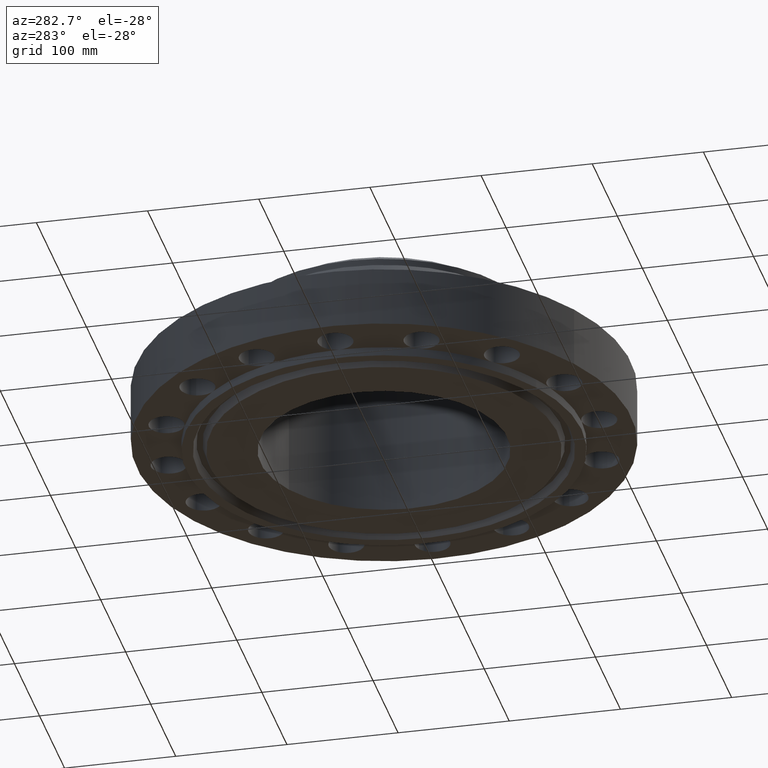
[diagram: clean part render]
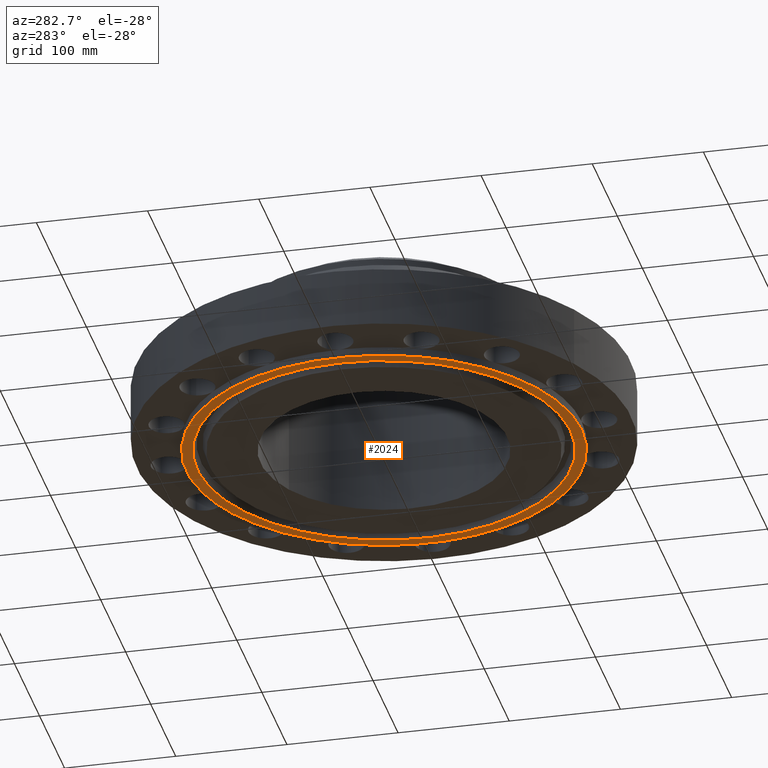
[diagram: same view with one face highlighted and labeled with its STEP entity id]
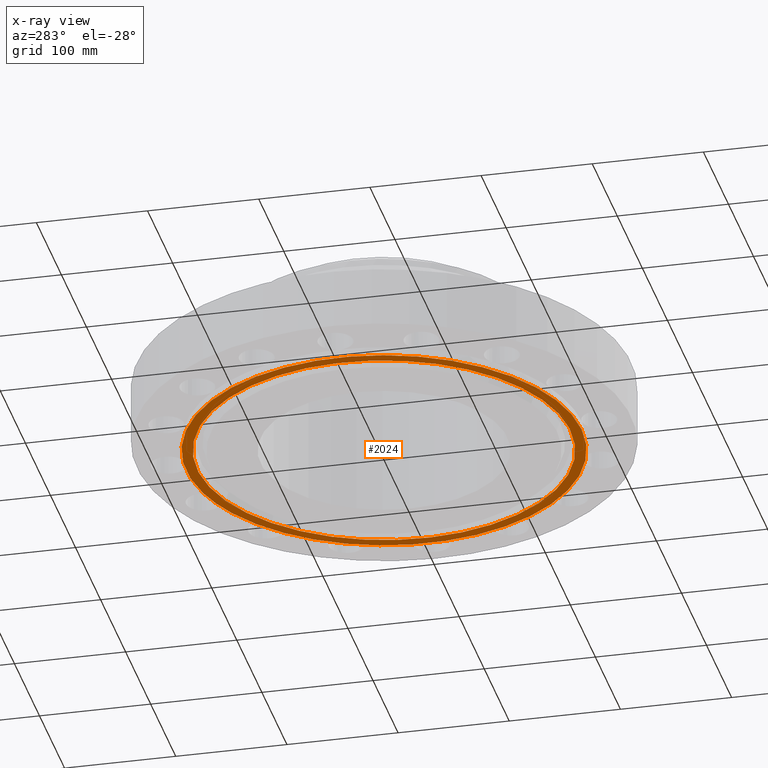
[diagram: x-ray of the same camera — body ghosted, the highlighted face saturated]
A machine part, auxiliary view. The second image highlights one B-rep face of the part: STEP entity #2024.
The next image is the same camera in x-ray: the body ghosted, the highlighted face saturated — about 0% of this face is hidden behind the body in this view.
In plain terms, the highlighted planar face has unit normal (0, 0, -1).
Its self-contained STEP definition (entity closure, byte-faithful):
#1091=AXIS2_PLACEMENT_3D('Circle Axis2P3D',#1089,#1090,$) ;
#2000=AXIS2_PLACEMENT_3D('Plane Axis2P3D',#1997,#1998,#1999) ;
#2008=AXIS2_PLACEMENT_3D('Circle Axis2P3D',#2006,#2007,$) ;
#2017=AXIS2_PLACEMENT_3D('Circle Axis2P3D',#2015,#2016,$) ;
#1089=CARTESIAN_POINT('Axis2P3D Location',(0.,0.,-0.313000000034)) ;
#1093=CARTESIAN_POINT('Vertex',(3.35597877025,6.14307793326,-0.313000000034)) ;
#1095=CARTESIAN_POINT('Vertex',(-3.35597877024,-6.14307793325,-0.313000000001)) ;
#1136=CARTESIAN_POINT('Control Point',(-3.35597877025,-6.14307793326,-0.313000000001)) ;
#1137=CARTESIAN_POINT('Control Point',(-4.32093119552,-5.61592202075,-0.313000000003)) ;
#1138=CARTESIAN_POINT('Control Point',(-5.18237679942,-4.89929814259,-0.313000000004)) ;
#1139=CARTESIAN_POINT('Control Point',(-5.89054518539,-4.02015285781,-0.313000000006)) ;
#1140=CARTESIAN_POINT('Control Point',(-6.92401186854,-2.03156042604,-0.313000000009)) ;
#1141=CARTESIAN_POINT('Control Point',(-7.12882071722,0.200166837853,-0.313000000012)) ;
#1142=CARTESIAN_POINT('Control Point',(-7.00792179263,1.32256709831,-0.313000000014)) ;
#1143=CARTESIAN_POINT('Control Point',(-6.3325458989,3.45948559162,-0.313000000017)) ;
#1144=CARTESIAN_POINT('Control Point',(-4.89929814259,5.18237679942,-0.313000000021)) ;
#1145=CARTESIAN_POINT('Control Point',(-4.02015285781,5.89054518539,-0.313000000022)) ;
#1146=CARTESIAN_POINT('Control Point',(-2.03156042604,6.92401186854,-0.313000000026)) ;
#1147=CARTESIAN_POINT('Control Point',(0.200166837849,7.12882071722,-0.313000000029)) ;
#1148=CARTESIAN_POINT('Control Point',(1.32256709831,7.00792179263,-0.31300000003)) ;
#1149=CARTESIAN_POINT('Control Point',(2.39102634496,6.67023384577,-0.313000000032)) ;
#1150=CARTESIAN_POINT('Control Point',(3.35597877024,6.14307793326,-0.313000000034)) ;
#1997=CARTESIAN_POINT('Axis2P3D Location',(0.,4.37500000002,-0.313000000001)) ;
#2006=CARTESIAN_POINT('Axis2P3D Location',(4.36650890423E-011,7.18711179809E-012,-0.313000000001)) ;
#2010=CARTESIAN_POINT('Vertex',(3.1687630974,-5.80038194286,-0.313000000001)) ;
#2012=CARTESIAN_POINT('Vertex',(-3.1687630974,5.80038194283,-0.313000000001)) ;
#2015=CARTESIAN_POINT('Axis2P3D Location',(-1.28118688012E-011,-2.36649894781E-011,-0.313000000001)) ;
#1090=DIRECTION('Axis2P3D Direction',(0.,0.,-0.0393700787402)) ;
#1998=DIRECTION('Axis2P3D Direction',(0.,0.,-0.0393700787402)) ;
#1999=DIRECTION('Axis2P3D XDirection',(0.0393700787402,0.,0.)) ;
#2007=DIRECTION('Axis2P3D Direction',(0.,0.,-0.0393700787402)) ;
#2016=DIRECTION('Axis2P3D Direction',(0.,0.,-0.0393700787402)) ;
#2003=ORIENTED_EDGE('',*,*,#1151,.T.) ;
#2004=ORIENTED_EDGE('',*,*,#1097,.T.) ;
#2021=ORIENTED_EDGE('',*,*,#2014,.F.) ;
#2022=ORIENTED_EDGE('',*,*,#2019,.F.) ;
#2023=FACE_BOUND('',#2020,.T.) ;
#2024=ADVANCED_FACE('PartBody',(#2005,#2023),#2001,.T.) ;
#1135=B_SPLINE_CURVE_WITH_KNOTS('',5,(#1136,#1137,#1138,#1139,#1140,#1141,#1142,#1143,#1144,#1145,#1146,#1147,#1148,#1149,#1150),.UNSPECIFIED.,.F.,.U.,(6,3,3,3,6),(-279.287586905,-139.643793453,2.84217094304E-014,139.643793453,279.287586905),.UNSPECIFIED.) ;
#1092=CIRCLE('generated circle',#1091,7.00000000003) ;
#2009=CIRCLE('generated circle',#2008,6.60950000003) ;
#2018=CIRCLE('generated circle',#2017,6.60950000003) ;
#1097=EDGE_CURVE('',#1094,#1096,#1092,.T.) ;
#1151=EDGE_CURVE('',#1096,#1094,#1135,.T.) ;
#2014=EDGE_CURVE('',#2011,#2013,#2009,.T.) ;
#2019=EDGE_CURVE('',#2013,#2011,#2018,.T.) ;
#2002=EDGE_LOOP('',(#2003,#2004)) ;
#2020=EDGE_LOOP('',(#2021,#2022)) ;
#2005=FACE_OUTER_BOUND('',#2002,.T.) ;
#2001=PLANE('',#2000) ;
#1094=VERTEX_POINT('',#1093) ;
#1096=VERTEX_POINT('',#1095) ;
#2011=VERTEX_POINT('',#2010) ;
#2013=VERTEX_POINT('',#2012) ;